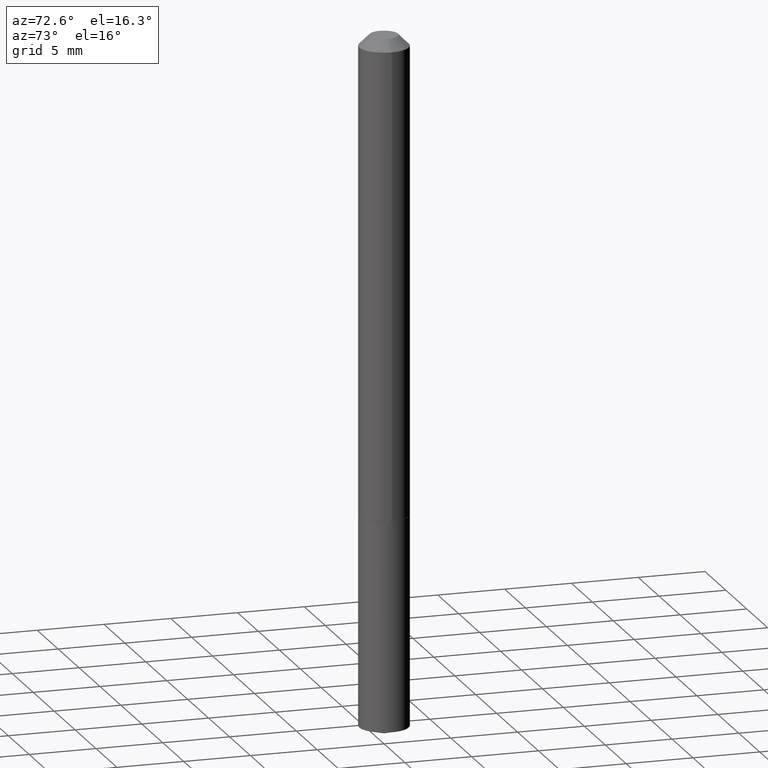
[diagram: clean part render]
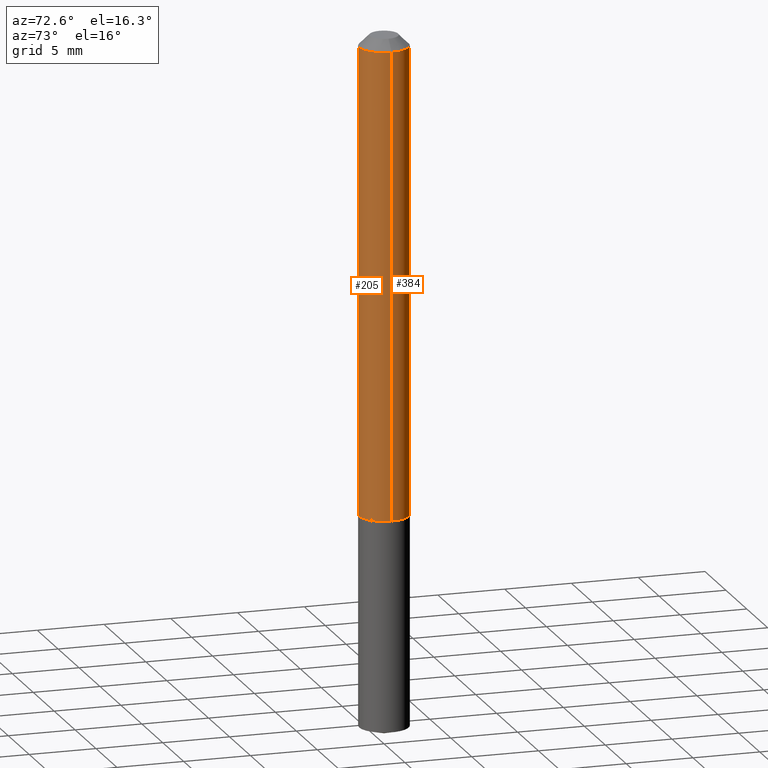
[diagram: same view with one multi-face feature highlighted, each face labeled with its STEP entity id]
A machine part, auxiliary view. The highlighted faces form ONE feature: a constant-radius fillet chain: 2 tangent blend faces with common blend radius 1.8504 mm. The faces share edges in the B-rep.
Their STEP definitions:
[1] entity #384 (Cylinder):
#7 = DIRECTION ( 'NONE',  ( -2.445468806185136597E-29, 3.491481338843145583E-15, 1.000000000000000000 ) ) ;
#10 = CARTESIAN_POINT ( 'NONE',  ( 0.07285000000000008136, -5.087088310694450726E-16, 3.552294781167343726E-30 ) ) ;
#17 = CARTESIAN_POINT ( 'NONE',  ( -0.07284999999999999809, -1.989689653455500531E-15, -0.03125000000000020817 ) ) ;
#29 = ORIENTED_EDGE ( 'NONE', *, *, #219, .T. ) ;
#32 = ORIENTED_EDGE ( 'NONE', *, *, #274, .F. ) ;
#36 = DIRECTION ( 'NONE',  ( -2.445468806185136877E-29, 3.491481338843145188E-15, 1.000000000000000000 ) ) ;
#45 = CYLINDRICAL_SURFACE ( 'NONE', #201, 0.07285000000000008136 ) ;
#59 = VECTOR ( 'NONE', #36, 39.37007874015748143 ) ;
#82 = CARTESIAN_POINT ( 'NONE',  ( 7.642090019328602662E-31, -1.091087918388490267E-16, -0.03125000000000020817 ) ) ;
#83 = CIRCLE ( 'NONE', #118, 0.07285000000000016462 ) ;
#84 = EDGE_CURVE ( 'NONE', #152, #214, #175, .T. ) ;
#97 = ORIENTED_EDGE ( 'NONE', *, *, #84, .F. ) ;
#104 = VECTOR ( 'NONE', #223, 39.37007874015748143 ) ;
#118 = AXIS2_PLACEMENT_3D ( 'NONE', #328, #265, #144 ) ;
#135 = CARTESIAN_POINT ( 'NONE',  ( 0.000000000000000000, 0.000000000000000000, 0.000000000000000000 ) ) ;
#144 = DIRECTION ( 'NONE',  ( 1.000000000000000000, -6.982962677686262766E-15, 0.000000000000000000 ) ) ;
#152 = VERTEX_POINT ( 'NONE', #172 ) ;
#158 = DIRECTION ( 'NONE',  ( 1.000000000000000000, -6.982962677686266711E-15, 4.876176775795936353E-29 ) ) ;
#160 = VERTEX_POINT ( 'NONE', #277 ) ;
#164 = FACE_OUTER_BOUND ( 'NONE', #330, .T. ) ;
#171 = CARTESIAN_POINT ( 'NONE',  ( 0.07285000000000016462, -5.414240112144066527E-15, -1.405000000000000471 ) ) ;
#172 = CARTESIAN_POINT ( 'NONE',  ( 0.07284999999999999809, -6.178176229082934830E-16, -0.03125000000000020817 ) ) ;
#175 = CIRCLE ( 'NONE', #221, 0.07284999999999999809 ) ;
#201 = AXIS2_PLACEMENT_3D ( 'NONE', #135, #7, #158 ) ;
#214 = VERTEX_POINT ( 'NONE', #17 ) ;
#219 = EDGE_CURVE ( 'NONE', #272, #160, #83, .T. ) ;
#221 = AXIS2_PLACEMENT_3D ( 'NONE', #82, #343, #311 ) ;
#223 = DIRECTION ( 'NONE',  ( -2.445468806185136877E-29, 3.491481338843145188E-15, 1.000000000000000000 ) ) ;
#224 = CARTESIAN_POINT ( 'NONE',  ( -0.07285000000000008136, 5.176303830012335635E-16, -3.583444213250702632E-30 ) ) ;
#249 = LINE ( 'NONE', #10, #104 ) ;
#258 = ORIENTED_EDGE ( 'NONE', *, *, #380, .T. ) ;
#265 = DIRECTION ( 'NONE',  ( -2.445468806185136597E-29, 3.491481338843145583E-15, 1.000000000000000000 ) ) ;
#272 = VERTEX_POINT ( 'NONE', #171 ) ;
#274 = EDGE_CURVE ( 'NONE', #272, #152, #249, .T. ) ;
#277 = CARTESIAN_POINT ( 'NONE',  ( -0.07285000000000016462, -4.387900898073387102E-15, -1.405000000000000471 ) ) ;
#311 = DIRECTION ( 'NONE',  ( 1.000000000000000000, -6.982962677686265922E-15, 0.000000000000000000 ) ) ;
#328 = CARTESIAN_POINT ( 'NONE',  ( 3.435883672690118017E-29, -4.905531281074621455E-15, -1.405000000000000471 ) ) ;
#330 = EDGE_LOOP ( 'NONE', ( #29, #258, #97, #32 ) ) ;
#343 = DIRECTION ( 'NONE',  ( -2.445468806185136597E-29, 3.491481338843145583E-15, 1.000000000000000000 ) ) ;
#368 = LINE ( 'NONE', #224, #59 ) ;
#380 = EDGE_CURVE ( 'NONE', #160, #214, #368, .T. ) ;
#384 = ADVANCED_FACE ( 'NONE', ( #164 ), #45, .T. ) ;
[2] entity #205 (Cylinder):
#10 = CARTESIAN_POINT ( 'NONE',  ( 0.07285000000000008136, -5.087088310694450726E-16, 3.552294781167343726E-30 ) ) ;
#13 = CARTESIAN_POINT ( 'NONE',  ( 3.435883672690118017E-29, -4.905531281074621455E-15, -1.405000000000000471 ) ) ;
#17 = CARTESIAN_POINT ( 'NONE',  ( -0.07284999999999999809, -1.989689653455500531E-15, -0.03125000000000020817 ) ) ;
#23 = EDGE_LOOP ( 'NONE', ( #261, #69, #302, #293 ) ) ;
#30 = DIRECTION ( 'NONE',  ( 1.000000000000000000, -6.982962677686265922E-15, 0.000000000000000000 ) ) ;
#33 = AXIS2_PLACEMENT_3D ( 'NONE', #335, #298, #30 ) ;
#36 = DIRECTION ( 'NONE',  ( -2.445468806185136877E-29, 3.491481338843145188E-15, 1.000000000000000000 ) ) ;
#59 = VECTOR ( 'NONE', #36, 39.37007874015748143 ) ;
#69 = ORIENTED_EDGE ( 'NONE', *, *, #117, .T. ) ;
#70 = EDGE_CURVE ( 'NONE', #214, #152, #375, .T. ) ;
#104 = VECTOR ( 'NONE', #223, 39.37007874015748143 ) ;
#117 = EDGE_CURVE ( 'NONE', #160, #272, #267, .T. ) ;
#139 = DIRECTION ( 'NONE',  ( 1.000000000000000000, -6.982962677686262766E-15, 0.000000000000000000 ) ) ;
#140 = DIRECTION ( 'NONE',  ( 1.000000000000000000, -6.982962677686266711E-15, 4.876176775795936353E-29 ) ) ;
#152 = VERTEX_POINT ( 'NONE', #172 ) ;
#160 = VERTEX_POINT ( 'NONE', #277 ) ;
#169 = CYLINDRICAL_SURFACE ( 'NONE', #260, 0.07285000000000008136 ) ;
#171 = CARTESIAN_POINT ( 'NONE',  ( 0.07285000000000016462, -5.414240112144066527E-15, -1.405000000000000471 ) ) ;
#172 = CARTESIAN_POINT ( 'NONE',  ( 0.07284999999999999809, -6.178176229082934830E-16, -0.03125000000000020817 ) ) ;
#174 = CARTESIAN_POINT ( 'NONE',  ( 0.000000000000000000, 0.000000000000000000, 0.000000000000000000 ) ) ;
#205 = ADVANCED_FACE ( 'NONE', ( #230 ), #169, .T. ) ;
#214 = VERTEX_POINT ( 'NONE', #17 ) ;
#223 = DIRECTION ( 'NONE',  ( -2.445468806185136877E-29, 3.491481338843145188E-15, 1.000000000000000000 ) ) ;
#224 = CARTESIAN_POINT ( 'NONE',  ( -0.07285000000000008136, 5.176303830012335635E-16, -3.583444213250702632E-30 ) ) ;
#230 = FACE_OUTER_BOUND ( 'NONE', #23, .T. ) ;
#249 = LINE ( 'NONE', #10, #104 ) ;
#260 = AXIS2_PLACEMENT_3D ( 'NONE', #174, #279, #140 ) ;
#261 = ORIENTED_EDGE ( 'NONE', *, *, #380, .F. ) ;
#267 = CIRCLE ( 'NONE', #275, 0.07285000000000016462 ) ;
#272 = VERTEX_POINT ( 'NONE', #171 ) ;
#274 = EDGE_CURVE ( 'NONE', #272, #152, #249, .T. ) ;
#275 = AXIS2_PLACEMENT_3D ( 'NONE', #13, #317, #139 ) ;
#277 = CARTESIAN_POINT ( 'NONE',  ( -0.07285000000000016462, -4.387900898073387102E-15, -1.405000000000000471 ) ) ;
#279 = DIRECTION ( 'NONE',  ( -2.445468806185136597E-29, 3.491481338843145583E-15, 1.000000000000000000 ) ) ;
#293 = ORIENTED_EDGE ( 'NONE', *, *, #70, .F. ) ;
#298 = DIRECTION ( 'NONE',  ( -2.445468806185136597E-29, 3.491481338843145583E-15, 1.000000000000000000 ) ) ;
#302 = ORIENTED_EDGE ( 'NONE', *, *, #274, .T. ) ;
#317 = DIRECTION ( 'NONE',  ( -2.445468806185136597E-29, 3.491481338843145583E-15, 1.000000000000000000 ) ) ;
#335 = CARTESIAN_POINT ( 'NONE',  ( 7.642090019328602662E-31, -1.091087918388490267E-16, -0.03125000000000020817 ) ) ;
#368 = LINE ( 'NONE', #224, #59 ) ;
#375 = CIRCLE ( 'NONE', #33, 0.07284999999999999809 ) ;
#380 = EDGE_CURVE ( 'NONE', #160, #214, #368, .T. ) ;